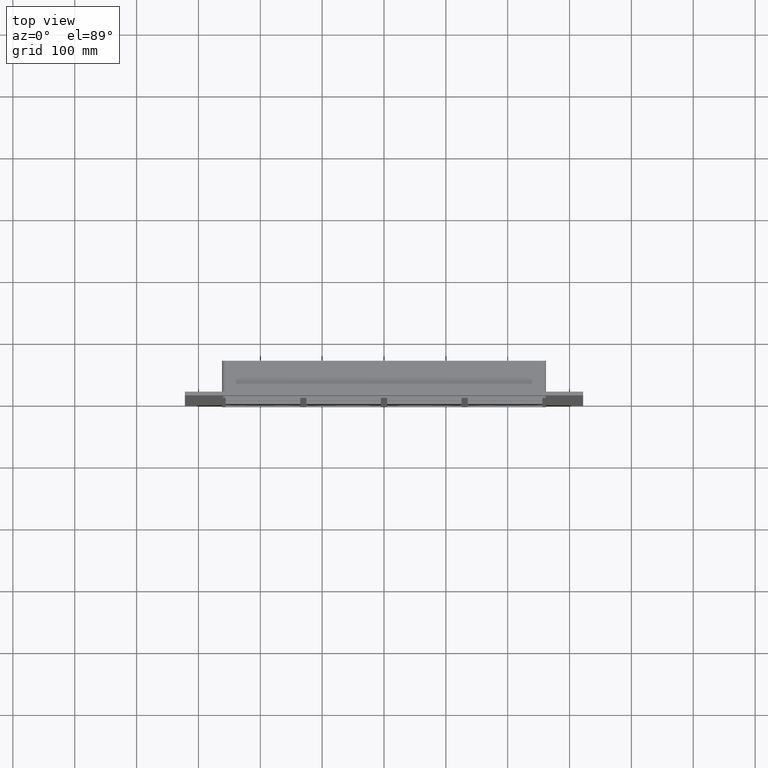
[diagram: clean part render]
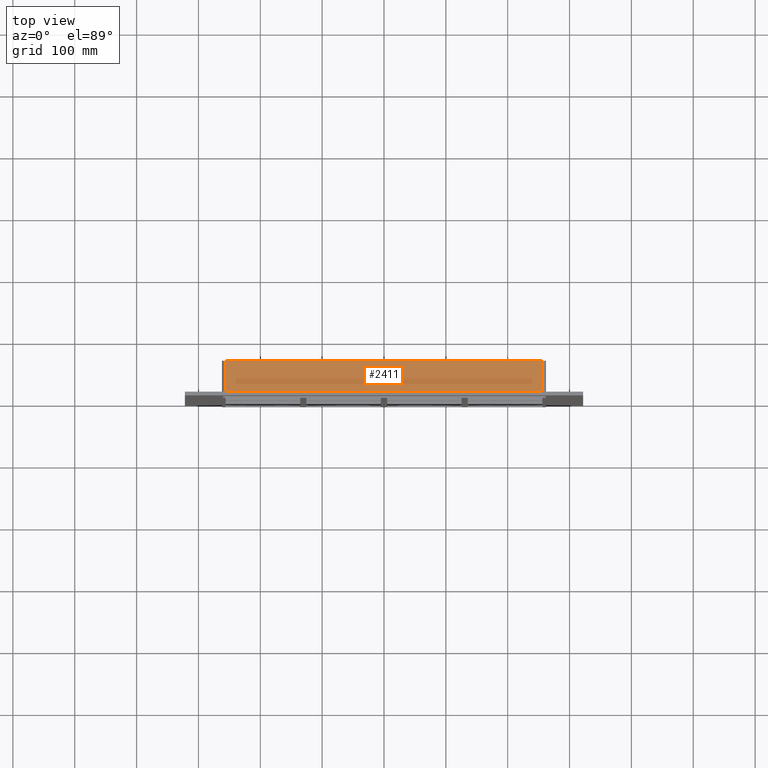
[diagram: same view with one face highlighted and labeled with its STEP entity id]
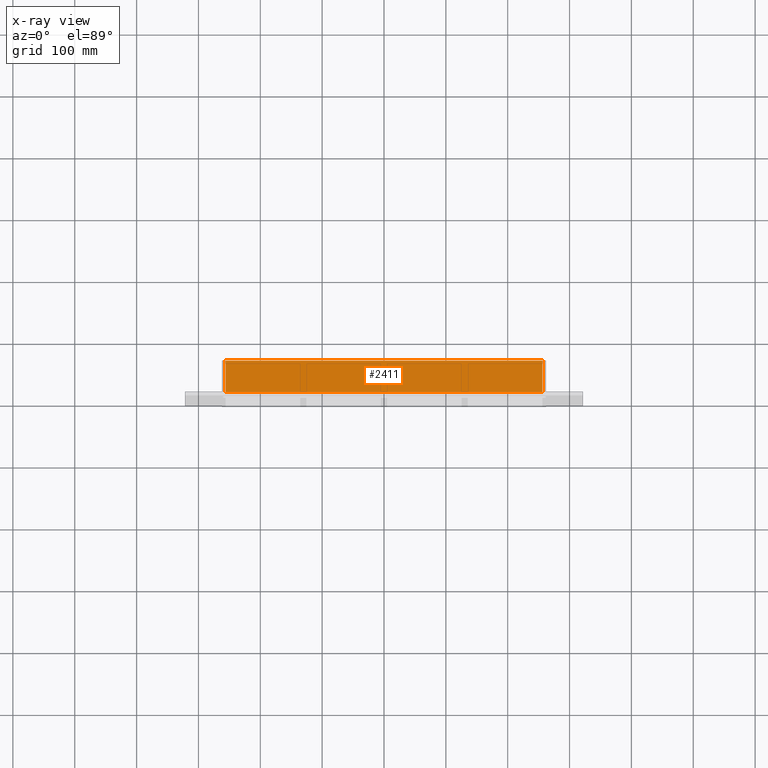
[diagram: x-ray of the same camera — body ghosted, the highlighted face saturated]
A machine part, top view. The second image highlights one B-rep face of the part: STEP entity #2411.
The next image is the same camera in x-ray: the body ghosted, the highlighted face saturated — about 0% of this face is hidden behind the body in this view.
In plain terms, the highlighted planar face has unit normal (0, 0, 1).
Its self-contained STEP definition (entity closure, byte-faithful):
#739=CARTESIAN_POINT('',(-256.0,57.0,435.00000000000011));
#740=VERTEX_POINT('',#739);
#748=CARTESIAN_POINT('',(256.0,57.0,435.00000000000011));
#749=VERTEX_POINT('',#748);
#750=CARTESIAN_POINT('',(-256.0,57.0,435.00000000000011));
#751=DIRECTION('',(1.0,0.0,0.0));
#752=VECTOR('',#751,512.0);
#753=LINE('',#750,#752);
#754=EDGE_CURVE('',#740,#749,#753,.T.);
#1915=CARTESIAN_POINT('',(256.0,6.000000000000001,435.00000000000011));
#1916=VERTEX_POINT('',#1915);
#1924=CARTESIAN_POINT('',(-256.0,6.000000000000001,435.00000000000011));
#1925=VERTEX_POINT('',#1924);
#1926=CARTESIAN_POINT('',(-256.0,6.000000000000001,435.00000000000011));
#1927=DIRECTION('',(1.0,0.0,0.0));
#1928=VECTOR('',#1927,512.0);
#1929=LINE('',#1926,#1928);
#1930=EDGE_CURVE('',#1925,#1916,#1929,.T.);
#2175=CARTESIAN_POINT('',(256.0,57.0,435.00000000000011));
#2176=DIRECTION('',(0.0,-1.0,0.0));
#2177=VECTOR('',#2176,51.0);
#2178=LINE('',#2175,#2177);
#2179=EDGE_CURVE('',#749,#1916,#2178,.T.);
#2389=CARTESIAN_POINT('',(-256.0,6.000000000000001,435.00000000000011));
#2390=DIRECTION('',(0.0,1.0,0.0));
#2391=VECTOR('',#2390,51.0);
#2392=LINE('',#2389,#2391);
#2393=EDGE_CURVE('',#1925,#740,#2392,.T.);
#2400=CARTESIAN_POINT('',(-262.0,0.0,435.00000000000011));
#2401=DIRECTION('',(0.0,0.0,1.0));
#2402=DIRECTION('',(1.0,0.0,0.0));
#2403=AXIS2_PLACEMENT_3D('',#2400,#2401,#2402);
#2404=PLANE('',#2403);
#2405=ORIENTED_EDGE('',*,*,#1930,.T.);
#2406=ORIENTED_EDGE('',*,*,#2179,.F.);
#2407=ORIENTED_EDGE('',*,*,#754,.F.);
#2408=ORIENTED_EDGE('',*,*,#2393,.F.);
#2409=EDGE_LOOP('',(#2405,#2406,#2407,#2408));
#2410=FACE_OUTER_BOUND('',#2409,.T.);
#2411=ADVANCED_FACE('',(#2410),#2404,.T.);